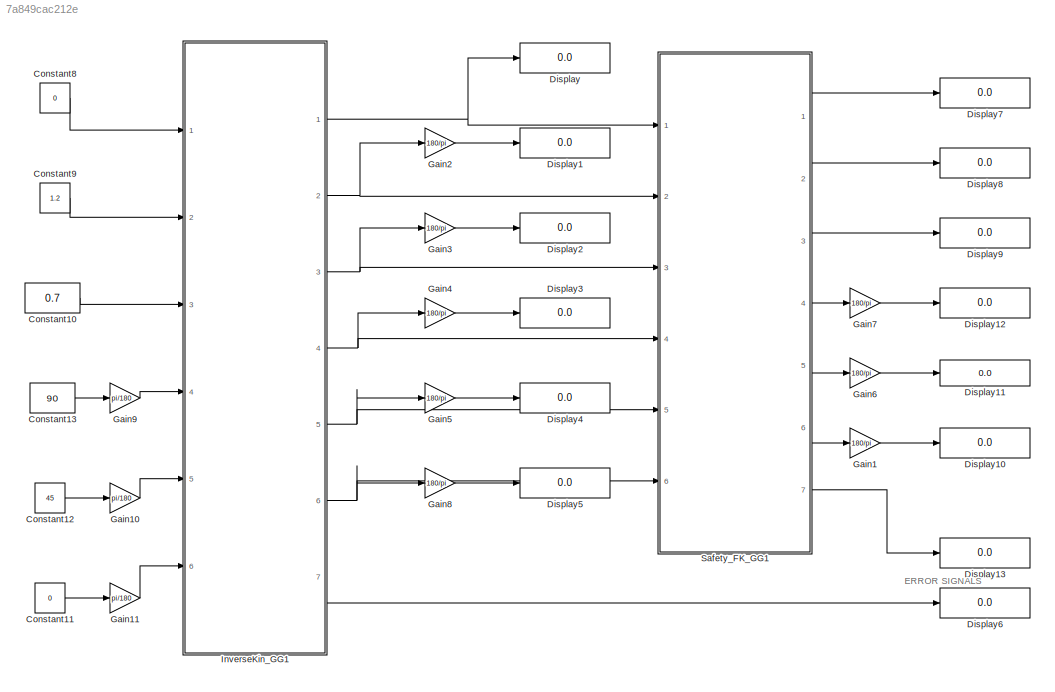
MODEL slx_7a849cac212e
KIND model
CONFIG AbsTol = auto
CONFIG EnableMultiTasking = off
CONFIG FixedStep = auto
CONFIG InitFcn = l1 = 0.475;\nl2 = 0.465;\nl3 = 0.62;\nh = 0.3;\nlimit_linear_P = 0.75;\nlimit_linear_N = -0.75;
CONFIG MaxStep = auto
CONFIG MinStep = auto
CONFIG RelTol = 1e-3
CONFIG SampleTimeConstraint = Unconstrained
CONFIG Solver = VariableStepAuto
CONFIG SolverName = VariableStepAuto
CONFIG StartTime = 0.0
CONFIG StopTime = 10.0
BLOCK [Constant] Constant10
  OutDataTypeStr = double
  Value = 0.7
BLOCK [Constant] Constant11
  OutDataTypeStr = double
  Value = 0
BLOCK [Constant] Constant12
  OutDataTypeStr = double
  Value = 45
BLOCK [Constant] Constant13
  OutDataTypeStr = double
  Value = 90
BLOCK [Constant] Constant8
  OutDataTypeStr = double
  Value = 0
BLOCK [Constant] Constant9
  OutDataTypeStr = double
  Value = 1.2
BLOCK [Display] Display
  Decimation = 1
  Ports = [1]
BLOCK [Display] Display1
  Decimation = 1
  Ports = [1]
BLOCK [Display] Display10
  Decimation = 1
  Ports = [1]
BLOCK [Display] Display11
  Decimation = 1
  Ports = [1]
BLOCK [Display] Display12
  Decimation = 1
  Ports = [1]
BLOCK [Display] Display13
  Decimation = 1
  Ports = [1]
BLOCK [Display] Display2
  Decimation = 1
  Ports = [1]
BLOCK [Display] Display3
  Decimation = 1
  Ports = [1]
BLOCK [Display] Display4
  Decimation = 1
  Ports = [1]
BLOCK [Display] Display5
  Decimation = 1
  Ports = [1]
BLOCK [Display] Display6
  Decimation = 1
  Ports = [1]
BLOCK [Display] Display7
  Decimation = 1
  Ports = [1]
BLOCK [Display] Display8
  Decimation = 1
  Ports = [1]
BLOCK [Display] Display9
  Decimation = 1
  Ports = [1]
BLOCK [Gain] Gain1
  Gain = 180/pi
  OutDataTypeStr = Inherit: Inherit via internal rule
  ParamDataTypeStr = Inherit: Inherit via internal rule
  SaturateOnIntegerOverflow = off
BLOCK [Gain] Gain10
  Gain = pi/180
  OutDataTypeStr = Inherit: Inherit via internal rule
  ParamDataTypeStr = Inherit: Inherit via internal rule
  SaturateOnIntegerOverflow = off
BLOCK [Gain] Gain11
  Gain = pi/180
  OutDataTypeStr = Inherit: Inherit via internal rule
  ParamDataTypeStr = Inherit: Inherit via internal rule
  SaturateOnIntegerOverflow = off
BLOCK [Gain] Gain2
  Gain = 180/pi
  OutDataTypeStr = Inherit: Inherit via internal rule
  ParamDataTypeStr = Inherit: Inherit via internal rule
  SaturateOnIntegerOverflow = off
BLOCK [Gain] Gain3
  Gain = 180/pi
  OutDataTypeStr = Inherit: Inherit via internal rule
  ParamDataTypeStr = Inherit: Inherit via internal rule
  SaturateOnIntegerOverflow = off
BLOCK [Gain] Gain4
  Gain = 180/pi
  OutDataTypeStr = Inherit: Inherit via internal rule
  ParamDataTypeStr = Inherit: Inherit via internal rule
  SaturateOnIntegerOverflow = off
BLOCK [Gain] Gain5
  Gain = 180/pi
  OutDataTypeStr = Inherit: Inherit via internal rule
  ParamDataTypeStr = Inherit: Inherit via internal rule
  SaturateOnIntegerOverflow = off
BLOCK [Gain] Gain6
  Gain = 180/pi
  OutDataTypeStr = Inherit: Inherit via internal rule
  ParamDataTypeStr = Inherit: Inherit via internal rule
  SaturateOnIntegerOverflow = off
BLOCK [Gain] Gain7
  Gain = 180/pi
  OutDataTypeStr = Inherit: Inherit via internal rule
  ParamDataTypeStr = Inherit: Inherit via internal rule
  SaturateOnIntegerOverflow = off
BLOCK [Gain] Gain8
  Gain = 180/pi
  OutDataTypeStr = Inherit: Inherit via internal rule
  ParamDataTypeStr = Inherit: Inherit via internal rule
  SaturateOnIntegerOverflow = off
BLOCK [Gain] Gain9
  Gain = pi/180
  OutDataTypeStr = Inherit: Inherit via internal rule
  ParamDataTypeStr = Inherit: Inherit via internal rule
  SaturateOnIntegerOverflow = off
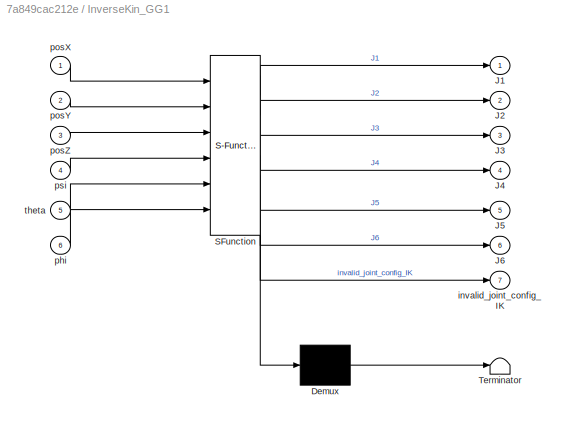
BLOCK [SubSystem] InverseKin_GG1
  ErrorFcn = Stateflow.Translate.translate
  PermitHierarchicalResolution = ExplicitOnly
  Ports = [6, 7]
  RequestExecContextInheritance = off
  SFBlockType = MATLAB Function
  TreatAsAtomicUnit = on
  Variant = off
BLOCK [Demux] InverseKin_GG1/ Demux 
  Outputs = 1
  Ports = [1, 1]
BLOCK [S-Function] InverseKin_GG1/ SFunction 
  EnableBusSupport = on
  FunctionName = sf_sfun
  Parameters = h,l1,l2,l3,limit_linear_N,limit_linear_P
  PortCounts = [6 8]
  Ports = [6, 8]
  SFcnIsStateOwnerBlock = off
  SFunctionDeploymentMode = off
  Tag = Stateflow S-Function Testing_Kin 10
BLOCK [Terminator] InverseKin_GG1/ Terminator 
BLOCK [Outport] InverseKin_GG1/J1
  IconDisplay = Port number
BLOCK [Outport] InverseKin_GG1/J2
  IconDisplay = Port number
  Port = 2
BLOCK [Outport] InverseKin_GG1/J3
  IconDisplay = Port number
  Port = 3
BLOCK [Outport] InverseKin_GG1/J4
  IconDisplay = Port number
  Port = 4
BLOCK [Outport] InverseKin_GG1/J5
  IconDisplay = Port number
  Port = 5
BLOCK [Outport] InverseKin_GG1/J6
  IconDisplay = Port number
  Port = 6
BLOCK [Outport] InverseKin_GG1/invalid_joint_config_IK
  IconDisplay = Port number
  Port = 7
BLOCK [Inport] InverseKin_GG1/phi
  IconDisplay = Port number
  Port = 6
BLOCK [Inport] InverseKin_GG1/posX
  IconDisplay = Port number
BLOCK [Inport] InverseKin_GG1/posY
  IconDisplay = Port number
  Port = 2
BLOCK [Inport] InverseKin_GG1/posZ
  IconDisplay = Port number
  Port = 3
BLOCK [Inport] InverseKin_GG1/psi
  IconDisplay = Port number
  Port = 4
BLOCK [Inport] InverseKin_GG1/theta
  IconDisplay = Port number
  Port = 5
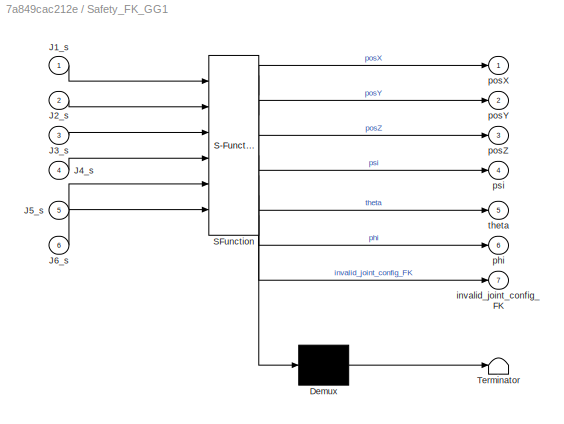
BLOCK [SubSystem] Safety_FK_GG1
  ErrorFcn = Stateflow.Translate.translate
  PermitHierarchicalResolution = ExplicitOnly
  Ports = [6, 7]
  RequestExecContextInheritance = off
  SFBlockType = MATLAB Function
  TreatAsAtomicUnit = on
  Variant = off
BLOCK [Demux] Safety_FK_GG1/ Demux 
  Outputs = 1
  Ports = [1, 1]
BLOCK [S-Function] Safety_FK_GG1/ SFunction 
  EnableBusSupport = on
  FunctionName = sf_sfun
  Parameters = h,l1,l2,l3,limit_linear_N,limit_linear_P
  PortCounts = [6 8]
  Ports = [6, 8]
  SFcnIsStateOwnerBlock = off
  SFunctionDeploymentMode = off
  Tag = Stateflow S-Function Testing_Kin 17
BLOCK [Terminator] Safety_FK_GG1/ Terminator 
BLOCK [Inport] Safety_FK_GG1/J1_s
  IconDisplay = Port number
BLOCK [Inport] Safety_FK_GG1/J2_s
  IconDisplay = Port number
  Port = 2
BLOCK [Inport] Safety_FK_GG1/J3_s
  IconDisplay = Port number
  Port = 3
BLOCK [Inport] Safety_FK_GG1/J4_s
  IconDisplay = Port number
  Port = 4
BLOCK [Inport] Safety_FK_GG1/J5_s
  IconDisplay = Port number
  Port = 5
BLOCK [Inport] Safety_FK_GG1/J6_s
  IconDisplay = Port number
  Port = 6
BLOCK [Outport] Safety_FK_GG1/invalid_joint_config_FK
  IconDisplay = Port number
  Port = 7
BLOCK [Outport] Safety_FK_GG1/phi
  IconDisplay = Port number
  Port = 6
BLOCK [Outport] Safety_FK_GG1/posX
  IconDisplay = Port number
BLOCK [Outport] Safety_FK_GG1/posY
  IconDisplay = Port number
  Port = 2
BLOCK [Outport] Safety_FK_GG1/posZ
  IconDisplay = Port number
  Port = 3
BLOCK [Outport] Safety_FK_GG1/psi
  IconDisplay = Port number
  Port = 4
BLOCK [Outport] Safety_FK_GG1/theta
  IconDisplay = Port number
  Port = 5
ANNOTATION (root): ERROR SIGNALS
LINE Constant10:1 -> InverseKin_GG1:3
LINE Constant11:1 -> Gain11:1
LINE Constant12:1 -> Gain10:1
LINE Constant13:1 -> Gain9:1
LINE Constant8:1 -> InverseKin_GG1:1
LINE Constant9:1 -> InverseKin_GG1:2
LINE Gain10:1 -> InverseKin_GG1:5
LINE Gain11:1 -> InverseKin_GG1:6
LINE Gain1:1 -> Display10:1
LINE Gain2:1 -> Display1:1
LINE Gain3:1 -> Display2:1
LINE Gain4:1 -> Display3:1
LINE Gain5:1 -> Display4:1
LINE Gain6:1 -> Display11:1
LINE Gain7:1 -> Display12:1
LINE Gain8:1 -> Display5:1
LINE Gain9:1 -> InverseKin_GG1:4
NET InverseKin_GG1:1 -> Display:1, Safety_FK_GG1:1
NET InverseKin_GG1:2 -> Gain2:1, Safety_FK_GG1:2
NET InverseKin_GG1:3 -> Gain3:1, Safety_FK_GG1:3
NET InverseKin_GG1:4 -> Gain4:1, Safety_FK_GG1:4
NET InverseKin_GG1:5 -> Gain5:1, Safety_FK_GG1:5
NET InverseKin_GG1:6 -> Gain8:1, Safety_FK_GG1:6
LINE InverseKin_GG1:7 -> Display6:1
LINE Safety_FK_GG1:1 -> Display7:1
LINE Safety_FK_GG1:2 -> Display8:1
LINE Safety_FK_GG1:3 -> Display9:1
LINE Safety_FK_GG1:4 -> Gain7:1
LINE Safety_FK_GG1:5 -> Gain6:1
LINE Safety_FK_GG1:6 -> Gain1:1
LINE Safety_FK_GG1:7 -> Display13:1
note: NET lines group one-source signal fan-out (src -> all destinations, sorted); 1:1 wires keep LINE
CHART InverseKin_GG1 states=1 transitions=1
  STATE_LABEL 'eML_blk_kernel()'
  STATE_LABEL 'SCRIPT:\nfunction [J1,J2,J3,J4,J5,J6,invalid_joint_config_IK] = fcn(posX,posY,posZ,psi,theta,phi, l1, l2, l3, h, limit_linear_P, limit_linear_N)\n\n% This function takes the 6 cartesian coordinates and returns the joint coordinates. \n% Naming:\n%       posX: end effector x with respect to the base coordinates system\n%       posY: end effector y with respect to the base coordinates system\n%       posZ:...<+3608ch>'
CHART Safety_FK_GG1 states=1 transitions=1
  STATE_LABEL 'eML_blk_kernel()'
  STATE_LABEL 'SCRIPT:\nfunction [posX,posY,posZ,psi,theta,phi,invalid_joint_config_FK] = fcn(J1_s,J2_s,J3_s,J4_s,J5_s,J6_s, l1, l2, l3, h, limit_linear_N, limit_linear_P)\n\n% This function takes the 6 joints variables and returns the end effector\n% positions and orientation in cartesian coordinates. \n% Naming:\n%       J1: prismatic joint\n%       J2: first rotational joint (around z axis)\n%       J3: second rotati...<+3428ch>'
